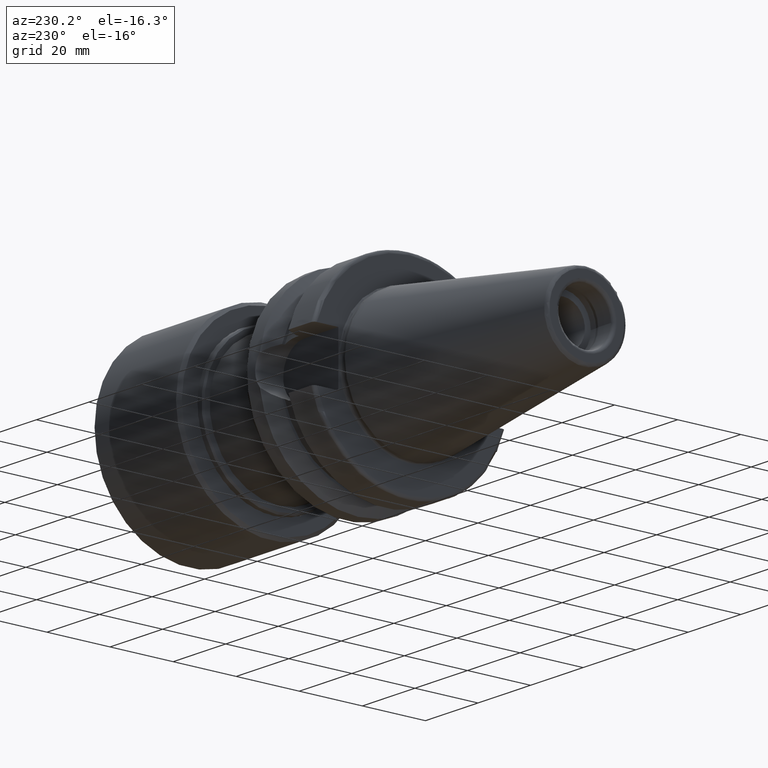
[diagram: clean part render]
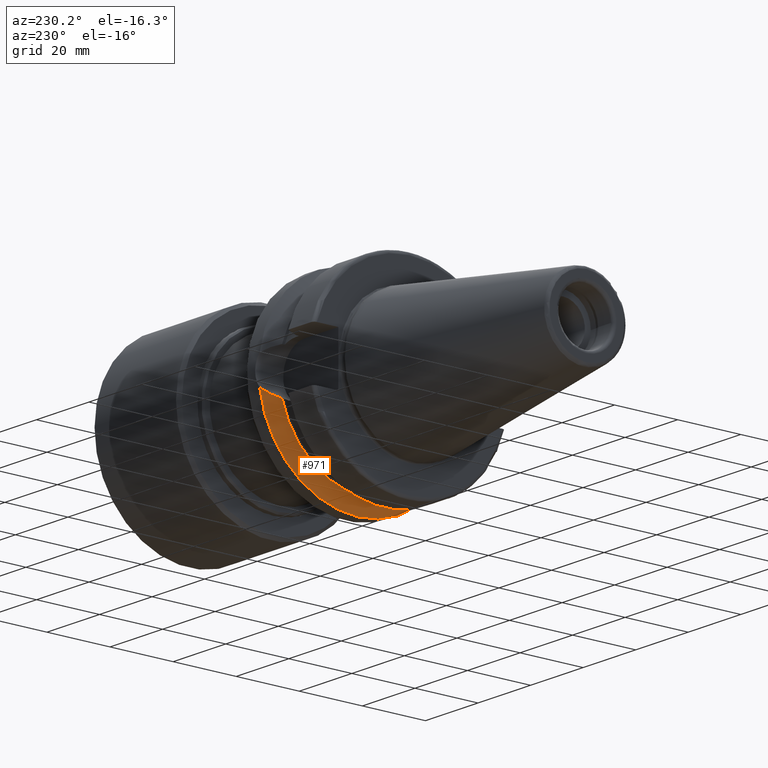
[diagram: same view with one face highlighted and labeled with its STEP entity id]
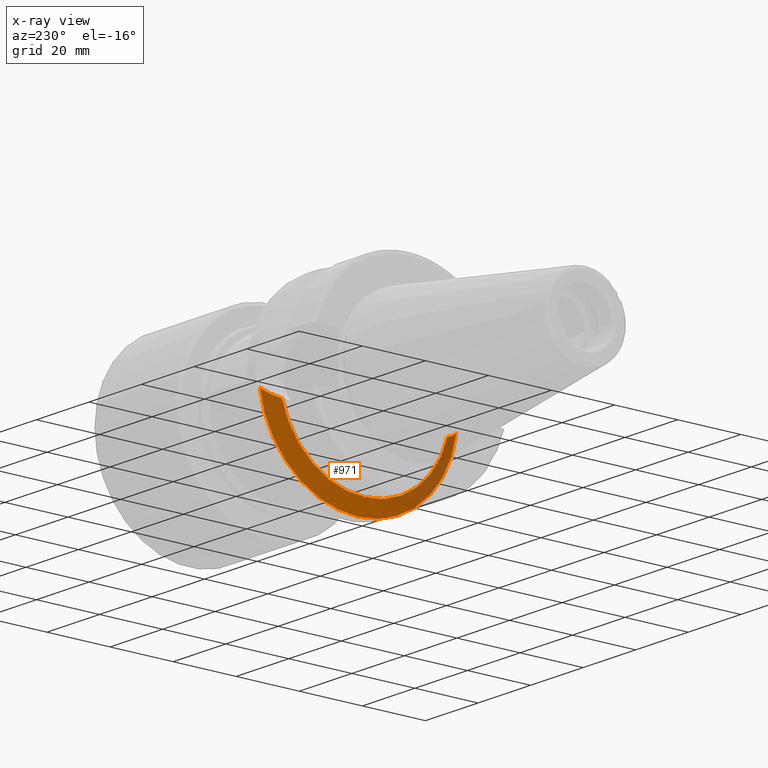
[diagram: x-ray of the same camera — body ghosted, the highlighted face saturated]
A machine part, auxiliary view. The second image highlights one B-rep face of the part: STEP entity #971.
The next image is the same camera in x-ray: the body ghosted, the highlighted face saturated — about 22% of this face is hidden behind the body in this view.
In plain terms, the highlighted conical surface has half-angle 60.125 deg.
Its self-contained STEP definition (entity closure, byte-faithful):
#40=B_SPLINE_CURVE_WITH_KNOTS('',3,(#1628,#1629,#1630,#1631,#1632,#1633),
 .UNSPECIFIED.,.F.,.F.,(4,2,4),(3.12975744792551,3.6269928875698,3.7084873746139),
 .UNSPECIFIED.);
#48=B_SPLINE_CURVE_WITH_KNOTS('',3,(#1744,#1745,#1746,#1747,#1748,#1749),
 .UNSPECIFIED.,.F.,.F.,(4,2,4),(1.46421027899563,1.54570476603974,2.04294020568402),
 .UNSPECIFIED.);
#132=FACE_OUTER_BOUND('',#197,.T.);
#197=EDGE_LOOP('',(#756,#757,#758,#759));
#371=CIRCLE('',#1131,31.5);
#374=CIRCLE('',#1135,27.0940716549138);
#441=VERTEX_POINT('',#1625);
#442=VERTEX_POINT('',#1627);
#464=VERTEX_POINT('',#1726);
#466=VERTEX_POINT('',#1742);
#545=EDGE_CURVE('',#442,#441,#40,.T.);
#571=EDGE_CURVE('',#442,#464,#371,.T.);
#575=EDGE_CURVE('',#441,#466,#374,.T.);
#576=EDGE_CURVE('',#466,#464,#48,.T.);
#756=ORIENTED_EDGE('',*,*,#545,.T.);
#757=ORIENTED_EDGE('',*,*,#575,.T.);
#758=ORIENTED_EDGE('',*,*,#576,.T.);
#759=ORIENTED_EDGE('',*,*,#571,.F.);
#941=CONICAL_SURFACE('',#1134,29.2970358274569,1.0493792127616);
#971=ADVANCED_FACE('',(#132),#941,.T.);
#1131=AXIS2_PLACEMENT_3D('',#1727,#1341,#1342);
#1134=AXIS2_PLACEMENT_3D('',#1741,#1347,#1348);
#1135=AXIS2_PLACEMENT_3D('',#1743,#1349,#1350);
#1341=DIRECTION('center_axis',(1.,0.,0.));
#1342=DIRECTION('ref_axis',(0.,0.,-1.));
#1347=DIRECTION('center_axis',(1.,0.,0.));
#1348=DIRECTION('ref_axis',(0.,1.,0.));
#1349=DIRECTION('center_axis',(1.,0.,0.));
#1350=DIRECTION('ref_axis',(0.,0.,-1.));
#1625=CARTESIAN_POINT('',(19.1,-26.201311395455,-6.89782574439221));
#1627=CARTESIAN_POINT('',(21.6309636926618,-31.1782420264945,-4.49079326370462));
#1628=CARTESIAN_POINT('Ctrl Pts',(21.6309636926618,-31.1782420264945,-4.49079326370461));
#1629=CARTESIAN_POINT('Ctrl Pts',(20.9728756148302,-29.8797957262939,-5.46983244373119));
#1630=CARTESIAN_POINT('Ctrl Pts',(20.1784155384866,-28.3157123387483,-6.1823136897693));
#1631=CARTESIAN_POINT('Ctrl Pts',(19.3406963650696,-26.6728819297427,-6.74867108656043));
#1632=CARTESIAN_POINT('Ctrl Pts',(19.2210929544554,-26.438473693351,-6.82497151762397));
#1633=CARTESIAN_POINT('Ctrl Pts',(19.1,-26.201311395455,-6.89782574439222));
#1726=CARTESIAN_POINT('',(21.6309636926618,31.1782420264945,-4.49079326370462));
#1727=CARTESIAN_POINT('Origin',(21.6309636926618,0.,0.));
#1741=CARTESIAN_POINT('Origin',(20.3654818463309,0.,0.));
#1742=CARTESIAN_POINT('',(19.1,26.201311395455,-6.89782574439221));
#1743=CARTESIAN_POINT('Origin',(19.1,0.,0.));
#1744=CARTESIAN_POINT('Ctrl Pts',(19.1,26.201311395455,-6.89782574439221));
#1745=CARTESIAN_POINT('Ctrl Pts',(19.2210929544554,26.438473693351,-6.82497151762396));
#1746=CARTESIAN_POINT('Ctrl Pts',(19.3406963650696,26.6728819297427,-6.74867108656043));
#1747=CARTESIAN_POINT('Ctrl Pts',(20.1784155384866,28.3157123387483,-6.1823136897693));
#1748=CARTESIAN_POINT('Ctrl Pts',(20.9728756148302,29.8797957262938,-5.46983244373119));
#1749=CARTESIAN_POINT('Ctrl Pts',(21.6309636926618,31.1782420264945,-4.49079326370462));